MODEL CL_pi
KIND model
CONFIG InitFcn = ts=100e-6;
CONFIG StartFcn = close all
CONFIG StopFcn = % Speed Torque Characterstic \n\n\nfigure('Units','pixels', ...\n'Color',[1 1 1], ...\n'Name','Speed Torque Characterstic',...\n'NumberTitle','off',...\n'Position',[400 50 470 300], ...\n'ToolBar','none');\n\n\n\nplot(N_pi,Te_pi)\ntitle('Speed Torque Characterstic')\nxlabel('Speed [ RPM ]')\nylabel('Electromagnetic Te_pi [ Nm ] ')\ngrid on\nclear p4 p7 param5 param6 param8 parametres visible volta...<+13ch>
BLOCK [SubSystem] 1 HP , 220 V\nInduction Motor
  FunctionWithSeparateData = off
  MaskCallbackString = ||||||
  MaskDescription = Dynamic Modelling of Induction by using Mathematic Equations
  MaskDisplay = fprintf('Induction\\nMotor')\n
  MaskEnableString = on,on,on,on,on,on,on
  MaskHideContents = off
  MaskIconFrame = on
  MaskIconOpaque = off
  MaskIconRotate = none
  MaskIconUnits = autoscale
  MaskPortRotate = physical
  MaskPromptString = Stator Resistance  Rs [ohms] :|Stator Inductance Ls [Hendry] :|Rotor Resistance Rr [ohms] :|Rotor Inductance Lr [Hendry] :|Mutual Inductance Lm [Hendry] :|Rotor Inertia J [Kg-m2] :|Number of Poles p :
  MaskStyleString = edit,edit,edit,edit,edit,edit,edit
  MaskTabNameString = ,,,,,,
  MaskToolTipString = on,on,on,on,on,on,on
  MaskTunableValueString = on,on,on,on,on,on,on
  MaskType = Induction Motor: By SRIKANTH D
  MaskValueString = 10.1|(15.81+245.8954)/(2*pi*50)|9.8546|(15.81+245.8954)/(2*pi*50)|(245.8954)/(2*pi*50)|0.0088|4
  MaskVarAliasString = ,,,,,,
  MaskVariables = Rs=@1;Ls=@2;Rr=@3;Lr=@4;Lm=@5;J=@6;P=@7;
  MaskVisibilityString = on,on,on,on,on,on,on
  MinAlgLoopOccurrences = off
  Opaque = off
  Ports = [4, 1]
  PropExecContextOutsideSubsystem = off
  RTWSystemCode = Auto
  RequestExecContextInheritance = off
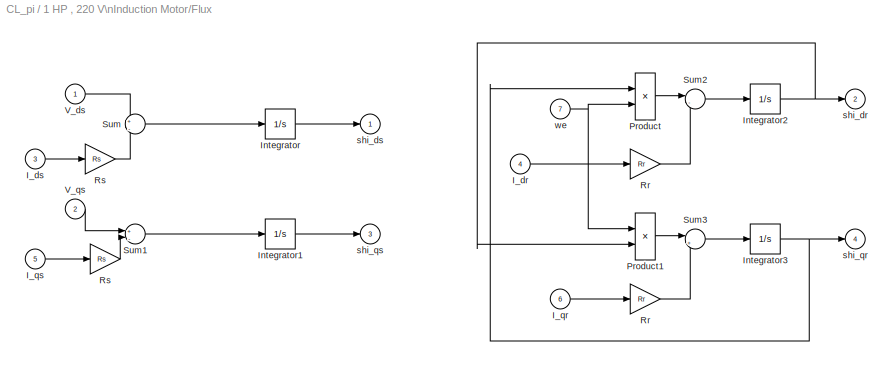
BLOCK [SubSystem] 1 HP , 220 V\nInduction Motor/Flux
  FunctionWithSeparateData = off
  MaskHideContents = off
  MinAlgLoopOccurrences = off
  Opaque = off
  Ports = [7, 4]
  PropExecContextOutsideSubsystem = off
  RTWSystemCode = Auto
  RequestExecContextInheritance = off
BLOCK [Inport] 1 HP , 220 V\nInduction Motor/Flux/I_dr
  IconDisplay = Port number
  Port = 4
BLOCK [Inport] 1 HP , 220 V\nInduction Motor/Flux/I_ds
  IconDisplay = Port number
  Port = 3
BLOCK [Inport] 1 HP , 220 V\nInduction Motor/Flux/I_qr
  IconDisplay = Port number
  Port = 6
BLOCK [Inport] 1 HP , 220 V\nInduction Motor/Flux/I_qs
  IconDisplay = Port number
  Port = 5
BLOCK [Integrator] 1 HP , 220 V\nInduction Motor/Flux/Integrator
  Ports = [1, 1]
BLOCK [Integrator] 1 HP , 220 V\nInduction Motor/Flux/Integrator1
  Ports = [1, 1]
BLOCK [Integrator] 1 HP , 220 V\nInduction Motor/Flux/Integrator2
  Ports = [1, 1]
BLOCK [Integrator] 1 HP , 220 V\nInduction Motor/Flux/Integrator3
  Ports = [1, 1]
BLOCK [Product] 1 HP , 220 V\nInduction Motor/Flux/Product
  InputSameDT = off
  OutDataTypeMode = Inherit via internal rule
  OutDataTypeStr = Inherit: Inherit via internal rule
  Ports = [2, 1]
  RndMeth = Floor
  SaturateOnIntegerOverflow = off
BLOCK [Product] 1 HP , 220 V\nInduction Motor/Flux/Product1
  InputSameDT = off
  OutDataTypeMode = Inherit via internal rule
  OutDataTypeStr = Inherit: Inherit via internal rule
  Ports = [2, 1]
  RndMeth = Floor
  SaturateOnIntegerOverflow = off
BLOCK [Gain] 1 HP , 220 V\nInduction Motor/Flux/Rr
  Gain = Rr
  OutDataTypeMode = Inherit via internal rule
  OutDataTypeStr = Inherit: Inherit via internal rule
  ParamDataTypeStr = Inherit: Inherit via internal rule
  ParameterDataTypeMode = Inherit via internal rule
  SaturateOnIntegerOverflow = off
BLOCK [Gain] 1 HP , 220 V\nInduction Motor/Flux/Rr 
  Gain = Rr
  OutDataTypeMode = Inherit via internal rule
  OutDataTypeStr = Inherit: Inherit via internal rule
  ParamDataTypeStr = Inherit: Inherit via internal rule
  ParameterDataTypeMode = Inherit via internal rule
  SaturateOnIntegerOverflow = off
BLOCK [Gain] 1 HP , 220 V\nInduction Motor/Flux/Rs
  Gain = Rs
  OutDataTypeMode = Inherit via internal rule
  OutDataTypeStr = Inherit: Inherit via internal rule
  ParamDataTypeStr = Inherit: Inherit via internal rule
  ParameterDataTypeMode = Inherit via internal rule
  SaturateOnIntegerOverflow = off
BLOCK [Gain] 1 HP , 220 V\nInduction Motor/Flux/Rs 
  Gain = Rs
  OutDataTypeMode = Inherit via internal rule
  OutDataTypeStr = Inherit: Inherit via internal rule
  ParamDataTypeStr = Inherit: Inherit via internal rule
  ParameterDataTypeMode = Inherit via internal rule
  SaturateOnIntegerOverflow = off
BLOCK [Sum] 1 HP , 220 V\nInduction Motor/Flux/Sum
  IconShape = round
  InputSameDT = off
  Inputs = +|-
  OutDataTypeMode = Inherit via internal rule
  OutDataTypeStr = Inherit: Inherit via internal rule
  Ports = [2, 1]
  SaturateOnIntegerOverflow = off
BLOCK [Sum] 1 HP , 220 V\nInduction Motor/Flux/Sum1
  IconShape = round
  InputSameDT = off
  Inputs = +|-
  OutDataTypeMode = Inherit via internal rule
  OutDataTypeStr = Inherit: Inherit via internal rule
  Ports = [2, 1]
  SaturateOnIntegerOverflow = off
BLOCK [Sum] 1 HP , 220 V\nInduction Motor/Flux/Sum2
  IconShape = round
  InputSameDT = off
  Inputs = |--
  OutDataTypeMode = Inherit via internal rule
  OutDataTypeStr = Inherit: Inherit via internal rule
  Ports = [2, 1]
  SaturateOnIntegerOverflow = off
BLOCK [Sum] 1 HP , 220 V\nInduction Motor/Flux/Sum3
  IconShape = round
  InputSameDT = off
  Inputs = |+-
  OutDataTypeMode = Inherit via internal rule
  OutDataTypeStr = Inherit: Inherit via internal rule
  Ports = [2, 1]
  SaturateOnIntegerOverflow = off
BLOCK [Inport] 1 HP , 220 V\nInduction Motor/Flux/V_ds
  IconDisplay = Port number
BLOCK [Inport] 1 HP , 220 V\nInduction Motor/Flux/V_qs
  IconDisplay = Port number
  Port = 2
BLOCK [Outport] 1 HP , 220 V\nInduction Motor/Flux/shi_dr 
  IconDisplay = Port number
  Port = 2
BLOCK [Outport] 1 HP , 220 V\nInduction Motor/Flux/shi_ds
  IconDisplay = Port number
BLOCK [Outport] 1 HP , 220 V\nInduction Motor/Flux/shi_qr 
  IconDisplay = Port number
  Port = 4
BLOCK [Outport] 1 HP , 220 V\nInduction Motor/Flux/shi_qs
  IconDisplay = Port number
  Port = 3
BLOCK [Inport] 1 HP , 220 V\nInduction Motor/Flux/we
  IconDisplay = Port number
  Port = 7
BLOCK [SubSystem] 1 HP , 220 V\nInduction Motor/Measurements
  FunctionWithSeparateData = off
  MaskHideContents = off
  MinAlgLoopOccurrences = off
  Opaque = off
  Ports = [8, 1]
  PropExecContextOutsideSubsystem = off
  RTWSystemCode = Auto
  RequestExecContextInheritance = off
BLOCK [BusCreator] 1 HP , 220 V\nInduction Motor/Measurements/Bus\nCreator
  DisplayOption = bar
  Inputs = 5
  Ports = [5, 1]
BLOCK [BusCreator] 1 HP , 220 V\nInduction Motor/Measurements/Bus\nCreator1
  DisplayOption = bar
  Inputs = 5
  Ports = [5, 1]
BLOCK [BusCreator] 1 HP , 220 V\nInduction Motor/Measurements/Bus\nCreator2
  DisplayOption = bar
  Inputs = 2
  Ports = [2, 1]
BLOCK [BusCreator] 1 HP , 220 V\nInduction Motor/Measurements/Bus\nCreator3
  DisplayOption = bar
  Inputs = 3
  Ports = [3, 1]
BLOCK [Demux] 1 HP , 220 V\nInduction Motor/Measurements/Demux
  DisplayOption = bar
  Outputs = 3
  Ports = [1, 3]
BLOCK [Demux] 1 HP , 220 V\nInduction Motor/Measurements/Demux1
  DisplayOption = bar
  Outputs = 3
  Ports = [1, 3]
BLOCK [Inport] 1 HP , 220 V\nInduction Motor/Measurements/I_dr
  IconDisplay = Port number
  Port = 4
BLOCK [Inport] 1 HP , 220 V\nInduction Motor/Measurements/I_ds
  IconDisplay = Port number
  Port = 3
BLOCK [Inport] 1 HP , 220 V\nInduction Motor/Measurements/I_qr
  IconDisplay = Port number
  Port = 6
BLOCK [Inport] 1 HP , 220 V\nInduction Motor/Measurements/I_qs
  IconDisplay = Port number
  Port = 5
BLOCK [Inport] 1 HP , 220 V\nInduction Motor/Measurements/I_r
  IconDisplay = Port number
  Port = 2
BLOCK [Inport] 1 HP , 220 V\nInduction Motor/Measurements/I_s
  IconDisplay = Port number
BLOCK [Inport] 1 HP , 220 V\nInduction Motor/Measurements/N
  IconDisplay = Port number
  Port = 8
BLOCK [Inport] 1 HP , 220 V\nInduction Motor/Measurements/Te
  IconDisplay = Port number
  Port = 7
BLOCK [Outport] 1 HP , 220 V\nInduction Motor/Measurements/m
  IconDisplay = Port number
BLOCK [SubSystem] 1 HP , 220 V\nInduction Motor/Mechanical
  FunctionWithSeparateData = off
  MaskHideContents = off
  MinAlgLoopOccurrences = off
  Opaque = off
  Ports = [5, 3]
  PropExecContextOutsideSubsystem = off
  RTWSystemCode = Auto
  RequestExecContextInheritance = off
BLOCK [Gain] 1 HP , 220 V\nInduction Motor/Mechanical/ 
  Gain = P/2
BLOCK [Gain] 1 HP , 220 V\nInduction Motor/Mechanical/  
  Gain = 3*P/4
BLOCK [Gain] 1 HP , 220 V\nInduction Motor/Mechanical/1//J
  Gain = 1/J
BLOCK [Integrator] 1 HP , 220 V\nInduction Motor/Mechanical/Integratorw
  Ports = [1, 1]
BLOCK [Product] 1 HP , 220 V\nInduction Motor/Mechanical/Product1
  InputSameDT = off
  OutDataTypeMode = Inherit via internal rule
  OutDataTypeStr = Inherit: Inherit via internal rule
  Ports = [2, 1]
  RndMeth = Floor
  SaturateOnIntegerOverflow = off
BLOCK [Product] 1 HP , 220 V\nInduction Motor/Mechanical/Product2
  InputSameDT = off
  OutDataTypeMode = Inherit via internal rule
  OutDataTypeStr = Inherit: Inherit via internal rule
  Ports = [2, 1]
  RndMeth = Floor
  SaturateOnIntegerOverflow = off
BLOCK [Sum] 1 HP , 220 V\nInduction Motor/Mechanical/Sum
  IconShape = round
  InputSameDT = off
  Inputs = +|-
  OutDataTypeMode = Inherit via internal rule
  OutDataTypeStr = Inherit: Inherit via internal rule
  Ports = [2, 1]
  SaturateOnIntegerOverflow = off
BLOCK [Sum] 1 HP , 220 V\nInduction Motor/Mechanical/Sum5
  IconShape = round
  Inputs = +-
  Ports = [2, 1]
BLOCK [Outport] 1 HP , 220 V\nInduction Motor/Mechanical/Te
  IconDisplay = Port number
BLOCK [Inport] 1 HP , 220 V\nInduction Motor/Mechanical/i_ds
  IconDisplay = Port number
  Port = 3
BLOCK [Inport] 1 HP , 220 V\nInduction Motor/Mechanical/i_qs
  IconDisplay = Port number
  Port = 4
BLOCK [Outport] 1 HP , 220 V\nInduction Motor/Mechanical/omegaR
  IconDisplay = Port number
  Port = 2
BLOCK [Inport] 1 HP , 220 V\nInduction Motor/Mechanical/shi_ds
  IconDisplay = Port number
BLOCK [Inport] 1 HP , 220 V\nInduction Motor/Mechanical/shi_qs
  IconDisplay = Port number
  Port = 2
BLOCK [Inport] 1 HP , 220 V\nInduction Motor/Mechanical/tau
  IconDisplay = Port number
  Port = 5
BLOCK [Outport] 1 HP , 220 V\nInduction Motor/Mechanical/we
  IconDisplay = Port number
  Port = 3
BLOCK [Mux] 1 HP , 220 V\nInduction Motor/Mux
  DisplayOption = bar
  Inputs = 3
  Ports = [3, 1]
BLOCK [Mux] 1 HP , 220 V\nInduction Motor/Mux1
  DisplayOption = bar
  Inputs = 3
  Ports = [3, 1]
BLOCK [Inport] 1 HP , 220 V\nInduction Motor/V_a
  IconDisplay = Port number
  Port = 2
BLOCK [Inport] 1 HP , 220 V\nInduction Motor/V_b
  IconDisplay = Port number
  Port = 3
BLOCK [Inport] 1 HP , 220 V\nInduction Motor/V_c
  IconDisplay = Port number
  Port = 4
BLOCK [SubSystem] 1 HP , 220 V\nInduction Motor/abc to dq
  FunctionWithSeparateData = off
  MaskHideContents = off
  MinAlgLoopOccurrences = off
  Opaque = off
  Ports = [3, 2]
  PropExecContextOutsideSubsystem = off
  RTWSystemCode = Auto
  RequestExecContextInheritance = off
BLOCK [Terminator] 1 HP , 220 V\nInduction Motor/abc to dq/            
BLOCK [Demux] 1 HP , 220 V\nInduction Motor/abc to dq/Demux
  Outputs = 3
  Ports = [1, 3]
BLOCK [Mux] 1 HP , 220 V\nInduction Motor/abc to dq/Mux
  DisplayOption = bar
  Inputs = 3
  Ports = [3, 1]
BLOCK [Outport] 1 HP , 220 V\nInduction Motor/abc to dq/V_ds
  IconDisplay = Port number
BLOCK [Outport] 1 HP , 220 V\nInduction Motor/abc to dq/V_qs
  IconDisplay = Port number
  Port = 2
BLOCK [Inport] 1 HP , 220 V\nInduction Motor/abc to dq/Va
  IconDisplay = Port number
BLOCK [Inport] 1 HP , 220 V\nInduction Motor/abc to dq/Vb
  IconDisplay = Port number
  Port = 2
BLOCK [Inport] 1 HP , 220 V\nInduction Motor/abc to dq/Vc
  IconDisplay = Port number
  Port = 3
BLOCK [Gain] 1 HP , 220 V\nInduction Motor/abc to dq/abc2dq
  Gain = [2/3 -1/3 -1/3; 0 sqrt(3)/3 -sqrt(3)/3; 1/3 1/3 1/3]
  Multiplication = Matrix(K*u)
BLOCK [SubSystem] 1 HP , 220 V\nInduction Motor/d_block
  FunctionWithSeparateData = off
  MaskHideContents = off
  MinAlgLoopOccurrences = off
  Opaque = off
  Ports = [2, 2]
  PropExecContextOutsideSubsystem = off
  RTWSystemCode = Auto
  RequestExecContextInheritance = off
BLOCK [Gain] 1 HP , 220 V\nInduction Motor/d_block/1//(Lr-((Lm*Lm)//Ls))
  Gain = 1/(Lr-((Lm*Lm)/Ls))
BLOCK [Gain] 1 HP , 220 V\nInduction Motor/d_block/1//(Ls-((Lm*Lm)//Lr))
  Gain = 1/(Ls-((Lm*Lm)/Lr))
BLOCK [Gain] 1 HP , 220 V\nInduction Motor/d_block/Lm//Lr
  Gain = Lm/Lr
  OutDataTypeMode = Inherit via internal rule
  OutDataTypeStr = Inherit: Inherit via internal rule
  ParamDataTypeStr = Inherit: Inherit via internal rule
  ParameterDataTypeMode = Inherit via internal rule
  SaturateOnIntegerOverflow = off
BLOCK [Gain] 1 HP , 220 V\nInduction Motor/d_block/Lm//Ls
  Gain = Lm/Ls
  OutDataTypeMode = Inherit via internal rule
  OutDataTypeStr = Inherit: Inherit via internal rule
  ParamDataTypeStr = Inherit: Inherit via internal rule
  ParameterDataTypeMode = Inherit via internal rule
  SaturateOnIntegerOverflow = off
BLOCK [Sum] 1 HP , 220 V\nInduction Motor/d_block/Sum
  IconShape = round
  InputSameDT = off
  Inputs = |+-
  OutDataTypeMode = Inherit via internal rule
  OutDataTypeStr = Inherit: Inherit via internal rule
  Ports = [2, 1]
  SaturateOnIntegerOverflow = off
BLOCK [Sum] 1 HP , 220 V\nInduction Motor/d_block/Sum1
  IconShape = round
  InputSameDT = off
  Inputs = -+|
  OutDataTypeMode = Inherit via internal rule
  OutDataTypeStr = Inherit: Inherit via internal rule
  Ports = [2, 1]
  SaturateOnIntegerOverflow = off
BLOCK [Outport] 1 HP , 220 V\nInduction Motor/d_block/i_dr
  IconDisplay = Port number
  Port = 2
BLOCK [Outport] 1 HP , 220 V\nInduction Motor/d_block/i_ds
  IconDisplay = Port number
BLOCK [Inport] 1 HP , 220 V\nInduction Motor/d_block/shi_dr
  IconDisplay = Port number
  Port = 2
BLOCK [Inport] 1 HP , 220 V\nInduction Motor/d_block/shi_ds
  IconDisplay = Port number
BLOCK [SubSystem] 1 HP , 220 V\nInduction Motor/dq to abc
  FunctionWithSeparateData = off
  MaskHideContents = off
  MinAlgLoopOccurrences = off
  Opaque = off
  Ports = [2, 3]
  PropExecContextOutsideSubsystem = off
  RTWSystemCode = Auto
  RequestExecContextInheritance = off
BLOCK [SubSystem] 1 HP , 220 V\nInduction Motor/dq to abc 
  FunctionWithSeparateData = off
  MaskHideContents = off
  MinAlgLoopOccurrences = off
  Opaque = off
  Ports = [2, 3]
  PropExecContextOutsideSubsystem = off
  RTWSystemCode = Auto
  RequestExecContextInheritance = off
BLOCK [Demux] 1 HP , 220 V\nInduction Motor/dq to abc /Demux
  Outputs = 3
  Ports = [1, 3]
BLOCK [Gain] 1 HP , 220 V\nInduction Motor/dq to abc /Gain
  Gain = 2/3
BLOCK [Inport] 1 HP , 220 V\nInduction Motor/dq to abc /I_d
  IconDisplay = Port number
BLOCK [Inport] 1 HP , 220 V\nInduction Motor/dq to abc /I_q
  IconDisplay = Port number
  Port = 2
BLOCK [Gain] 1 HP , 220 V\nInduction Motor/dq to abc /Matrix\nGain
  Gain = [1 0;-0.5 -sqrt(3)/2;-0.5 sqrt(3)/2]
  Multiplication = Matrix(K*u)
BLOCK [Mux] 1 HP , 220 V\nInduction Motor/dq to abc /Mux
  DisplayOption = bar
  Inputs = 2
  Ports = [2, 1]
BLOCK [Outport] 1 HP , 220 V\nInduction Motor/dq to abc /i_ra
  IconDisplay = Port number
BLOCK [Outport] 1 HP , 220 V\nInduction Motor/dq to abc /i_rb
  IconDisplay = Port number
  Port = 2
BLOCK [Outport] 1 HP , 220 V\nInduction Motor/dq to abc /i_rc
  IconDisplay = Port number
  Port = 3
BLOCK [Demux] 1 HP , 220 V\nInduction Motor/dq to abc/Demux
  Outputs = 3
  Ports = [1, 3]
BLOCK [Gain] 1 HP , 220 V\nInduction Motor/dq to abc/Gain
  Gain = 2/3
BLOCK [Inport] 1 HP , 220 V\nInduction Motor/dq to abc/I_d
  IconDisplay = Port number
BLOCK [Inport] 1 HP , 220 V\nInduction Motor/dq to abc/I_q
  IconDisplay = Port number
  Port = 2
BLOCK [Gain] 1 HP , 220 V\nInduction Motor/dq to abc/Matrix\nGain
  Gain = [1 0;-0.5 -sqrt(3)/2;-0.5 sqrt(3)/2]
  Multiplication = Matrix(K*u)
BLOCK [Mux] 1 HP , 220 V\nInduction Motor/dq to abc/Mux
  DisplayOption = bar
  Inputs = 2
  Ports = [2, 1]
BLOCK [Outport] 1 HP , 220 V\nInduction Motor/dq to abc/i_sa
  IconDisplay = Port number
BLOCK [Outport] 1 HP , 220 V\nInduction Motor/dq to abc/i_sb
  IconDisplay = Port number
  Port = 2
BLOCK [Outport] 1 HP , 220 V\nInduction Motor/dq to abc/i_sc
  IconDisplay = Port number
  Port = 3
BLOCK [Outport] 1 HP , 220 V\nInduction Motor/m
  IconDisplay = Port number
BLOCK [SubSystem] 1 HP , 220 V\nInduction Motor/q_block
  FunctionWithSeparateData = off
  MaskHideContents = off
  MinAlgLoopOccurrences = off
  Opaque = off
  Ports = [2, 2]
  PropExecContextOutsideSubsystem = off
  RTWSystemCode = Auto
  RequestExecContextInheritance = off
BLOCK [Gain] 1 HP , 220 V\nInduction Motor/q_block/1//(Lr-((Lm*Lm)//Ls))
  Gain = 1/(Lr-((Lm*Lm)/Ls))
BLOCK [Gain] 1 HP , 220 V\nInduction Motor/q_block/1//(Ls-((Lm*Lm)//Lr))
  Gain = 1/(Ls-((Lm*Lm)/Lr))
BLOCK [Gain] 1 HP , 220 V\nInduction Motor/q_block/Lm//Lr
  Gain = Lm/Lr
  OutDataTypeMode = Inherit via internal rule
  OutDataTypeStr = Inherit: Inherit via internal rule
  ParamDataTypeStr = Inherit: Inherit via internal rule
  ParameterDataTypeMode = Inherit via internal rule
  SaturateOnIntegerOverflow = off
BLOCK [Gain] 1 HP , 220 V\nInduction Motor/q_block/Lm//Ls
  Gain = Lm/Ls
  OutDataTypeMode = Inherit via internal rule
  OutDataTypeStr = Inherit: Inherit via internal rule
  ParamDataTypeStr = Inherit: Inherit via internal rule
  ParameterDataTypeMode = Inherit via internal rule
  SaturateOnIntegerOverflow = off
BLOCK [Sum] 1 HP , 220 V\nInduction Motor/q_block/Sum
  IconShape = round
  InputSameDT = off
  Inputs = |+-
  OutDataTypeMode = Inherit via internal rule
  OutDataTypeStr = Inherit: Inherit via internal rule
  Ports = [2, 1]
  SaturateOnIntegerOverflow = off
BLOCK [Sum] 1 HP , 220 V\nInduction Motor/q_block/Sum1
  IconShape = round
  InputSameDT = off
  Inputs = -+|
  OutDataTypeMode = Inherit via internal rule
  OutDataTypeStr = Inherit: Inherit via internal rule
  Ports = [2, 1]
  SaturateOnIntegerOverflow = off
BLOCK [Outport] 1 HP , 220 V\nInduction Motor/q_block/i_qr
  IconDisplay = Port number
  Port = 2
BLOCK [Outport] 1 HP , 220 V\nInduction Motor/q_block/i_qs
  IconDisplay = Port number
BLOCK [Inport] 1 HP , 220 V\nInduction Motor/q_block/shi_qr
  IconDisplay = Port number
  Port = 2
BLOCK [Inport] 1 HP , 220 V\nInduction Motor/q_block/shi_qs
  IconDisplay = Port number
BLOCK [Gain] 1 HP , 220 V\nInduction Motor/rad2rpm
  Gain = 30/pi
  OutDataTypeMode = Inherit via internal rule
  OutDataTypeStr = Inherit: Inherit via internal rule
  ParamDataTypeStr = Inherit: Inherit via internal rule
  ParameterDataTypeMode = Inherit via internal rule
  SaturateOnIntegerOverflow = off
BLOCK [Inport] 1 HP , 220 V\nInduction Motor/tau
  IconDisplay = Port number
BLOCK [SubSystem] Data Acquision
  FunctionWithSeparateData = off
  MaskHideContents = off
  MinAlgLoopOccurrences = off
  Opaque = off
  Ports = [1, 3]
  PropExecContextOutsideSubsystem = off
  RTWSystemCode = Auto
  RequestExecContextInheritance = off
BLOCK [Reference] Data Acquision/2nd-Order\nFilter  REF=powerlib_extras/Control \nBlocks/2nd-Order\nFilter
  DialogController = POWERSYS.PowerSysDialog
  FilterType = Lowpass
  Fo = 120
  FunctionWithSeparateData = off
  Initialize = off
  PlotResponse = off
  Ports = [1, 1]
  RTWMemSecDataConstants = Inherit from model
  RTWMemSecDataInternal = Inherit from model
  RTWMemSecDataParameters = Inherit from model
  RTWMemSecFuncExecute = Inherit from model
  RTWMemSecFuncInitTerm = Inherit from model
  ShowPortLabels = FromPortIcon
  SourceBlock = powerlib_extras/Control \nBlocks/2nd-Order\nFilter
  SourceType = 2nd-Order Filter
  SystemSampleTime = -1
  Vac_Init = [1 45 60]
  Vdc_Init = -0.5
  Zeta = 0.707
  param1 = [1 500 1]
BLOCK [BusSelector] Data Acquision/Bus\nSelector
  OutputSignals = Mechanical.Rotor Speed in (rpm),Mechanical.Electromagnetic Torque (N*m),Stator Measurement.Stator Current i_sa (A)
  Ports = [1, 3]
BLOCK [Clock] Data Acquision/Clock
  Decimation = 10
BLOCK [From] Data Acquision/From
  GotoTag = speed
  TagVisibility = global
BLOCK [Mux] Data Acquision/Mux
  DisplayOption = bar
  Inputs = 2
  Ports = [2, 1]
BLOCK [Outport] Data Acquision/Te(Nm)
  IconDisplay = Port number
  Port = 2
BLOCK [ToWorkspace] Data Acquision/To Workspace
  FixptAsFi = on
  MaxDataPoints = inf
  SampleTime = ts
  SaveFormat = Array
  VariableName = t
BLOCK [Outport] Data Acquision/is_a
  IconDisplay = Port number
BLOCK [Inport] Data Acquision/m
  IconDisplay = Port number
BLOCK [ToWorkspace] Data Acquision/te
  MaxDataPoints = inf
  SampleTime = ts
  SaveFormat = Array
  VariableName = Te_pi
BLOCK [ToWorkspace] Data Acquision/te1
  MaxDataPoints = inf
  SampleTime = ts
  SaveFormat = Array
  VariableName = ref_pi
BLOCK [FrameConversion] Data Acquision/tp2d2ed547_8755_4176_b2df_b47a3ed91f8f
  OutFrame = Sample-based
  Ports = [1, 1]
BLOCK [Outport] Data Acquision/wm
  IconDisplay = Port number
  Port = 3
BLOCK [ToWorkspace] Data Acquision/wr
  MaxDataPoints = inf
  SampleTime = ts
  SaveFormat = Array
  VariableName = N_pi
BLOCK [Goto] Goto
  GotoTag = speed
  TagVisibility = global
BLOCK [Scope] Ir_a
  DataFormat = StructureWithTime
  Floating = off
  LimitDataPoints = off
  NumInputPorts = 1
  Ports = [1]
  SampleTime = ts
  TimeRange = 2
  YMax = 3
  YMin = -3
  ZoomMode = xonly
BLOCK [SubSystem] PI Control
  FunctionWithSeparateData = off
  MaskDisplay = fprintf('PI\\Control')
  MaskHideContents = off
  MaskIconFrame = on
  MaskIconOpaque = off
  MaskIconRotate = none
  MaskIconUnits = autoscale
  MaskPortRotate = default
  MinAlgLoopOccurrences = off
  Opaque = off
  Ports = [2, 1]
  PropExecContextOutsideSubsystem = off
  RTWSystemCode = Auto
  RequestExecContextInheritance = off
BLOCK [Abs] PI Control/Abs
BLOCK [Abs] PI Control/Abs1
BLOCK [Abs] PI Control/Abs2
  SaturateOnIntegerOverflow = off
BLOCK [Reference] PI Control/Compare\nTo Constant  REF=simulink/Logic and Bit\nOperations/Compare\nTo Constant
  FunctionWithSeparateData = off
  LogicOutDataTypeMode = uint8
  Ports = [1, 1]
  RTWMemSecDataConstants = Inherit from model
  RTWMemSecDataInternal = Inherit from model
  RTWMemSecDataParameters = Inherit from model
  RTWMemSecFuncExecute = Inherit from model
  RTWMemSecFuncInitTerm = Inherit from model
  ShowPortLabels = FromPortIcon
  SourceBlock = simulink/Logic and Bit\nOperations/Compare\nTo Constant
  SourceType = Compare To Constant
  SystemSampleTime = -1
  ZeroCross = on
  const = 0.1
  relop = <=
BLOCK [Constant] PI Control/Constant
  Value = 0
BLOCK [Product] PI Control/Divide
  InputSameDT = off
  Inputs = /*
  OutDataTypeMode = Inherit via internal rule
  OutDataTypeStr = Inherit: Inherit via internal rule
  Ports = [2, 1]
  RndMeth = Floor
  SaturateOnIntegerOverflow = off
BLOCK [Outport] PI Control/Freq*
  IconDisplay = Port number
BLOCK [Integrator] PI Control/Integrator\nLimited
  LimitOutput = on
  LowerSaturationLimit = -30
  Ports = [1, 1]
  UpperSaturationLimit = 30
BLOCK [Inport] PI Control/N
  IconDisplay = Port number
  Port = 2
BLOCK [Inport] PI Control/N*
  IconDisplay = Port number
BLOCK [Gain] PI Control/Proportional gain
  Gain = 0.3
BLOCK [RateTransition] PI Control/Rate Transition3
  OutPortSampleTimeOpt = Inherit
BLOCK [Saturate] PI Control/Saturation
  LowerLimit = 2
  UpperLimit = inf
BLOCK [Saturate] PI Control/Saturation2
  LowerLimit = 0.02
  UpperLimit = 120
BLOCK [Sum] PI Control/Sum1
  IconShape = round
  Inputs = |+-
  Ports = [2, 1]
BLOCK [Sum] PI Control/Sum2
  Ports = [2, 1]
BLOCK [Sum] PI Control/Sum3
  IconShape = round
  Inputs = |++
  Ports = [2, 1]
BLOCK [Switch] PI Control/Switch
  InputSameDT = off
  SaturateOnIntegerOverflow = off
  Threshold = 0.5
BLOCK [Saturate] PI Control/ctrl_sat
  LowerLimit = -30
  UpperLimit = 30
BLOCK [Gain] PI Control/rpm2hz
  Gain = 4/120
BLOCK [Gain] PI Control/rpm2hz  
  Gain = 4/120
BLOCK [Selector] Selector
  IndexOptions = Index vector (dialog)
  Indices = [1]
  InputPortWidth = 2
  OutputSizes = 1
  Ports = [1, 1]
BLOCK [Step] Speed_ref
  After = 1440
  Before = 1440
  SampleTime = 0
  Time = 2
BLOCK [SubSystem] VSI
  FunctionWithSeparateData = off
  MaskDisplay = fprintf('Vdc = 220 V ')
  MaskHideContents = off
  MaskIconFrame = on
  MaskIconOpaque = off
  MaskIconRotate = none
  MaskIconUnits = autoscale
  MaskInitialization = Vdc=220;
  MaskPortRotate = default
  MinAlgLoopOccurrences = off
  Opaque = off
  Ports = [1, 3]
  PropExecContextOutsideSubsystem = off
  RTWSystemCode = Auto
  RequestExecContextInheritance = off
BLOCK [Fcn] VSI/Fcn
  Expr = (2*sqrt(2/3)*Vdc/3)*(2*u(1)-u(2)-u(3))
BLOCK [Fcn] VSI/Fcn1
  Expr = (2*sqrt(2/3)*Vdc/3)*(2*u(2)-u(3)-u(1))
BLOCK [Fcn] VSI/Fcn2
  Expr = (2*sqrt(2/3)*Vdc/3)*(2*u(3)-u(2)-u(1))
BLOCK [Inport] VSI/Freq
  IconDisplay = Port number
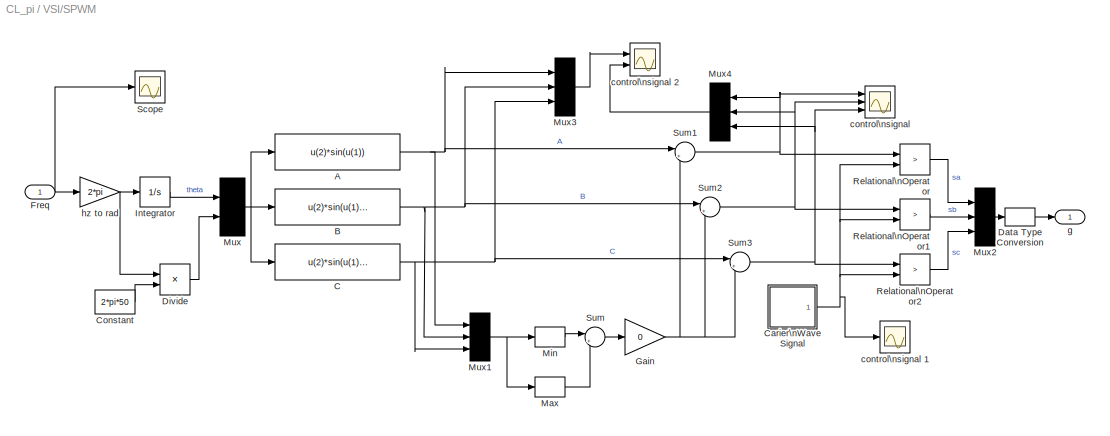
BLOCK [SubSystem] VSI/SPWM
  FunctionWithSeparateData = off
  MaskHideContents = off
  MinAlgLoopOccurrences = off
  Opaque = off
  Ports = [1, 1]
  PropExecContextOutsideSubsystem = off
  RTWSystemCode = Auto
  RequestExecContextInheritance = off
BLOCK [Fcn] VSI/SPWM/A
  Expr = u(2)*sin(u(1))
BLOCK [Fcn] VSI/SPWM/B
  Expr = u(2)*sin(u(1)-2*pi/3)
BLOCK [Fcn] VSI/SPWM/C
  Expr = u(2)*sin(u(1)+2*pi/3)
BLOCK [SubSystem] VSI/SPWM/Carier\nWave Signal
  FunctionWithSeparateData = off
  MaskCallbackString = |
  MaskDisplay = fprintf('Carrier\\nWave')
  MaskEnableString = on,on
  MaskHideContents = off
  MaskIconFrame = on
  MaskIconOpaque = on
  MaskIconRotate = none
  MaskIconUnits = autoscale
  MaskPortRotate = default
  MaskPromptString = Amplitude |Carrier Wave Frequency
  MaskStyleString = edit,edit
  MaskTabNameString = ,
  MaskToolTipString = on,on
  MaskTunableValueString = on,on
  MaskType = Carrier Wave Generator:
  MaskValueString = 1|500
  MaskVarAliasString = ,
  MaskVariables = A=@1;fc=@2;
  MaskVisibilityString = on,on
  MinAlgLoopOccurrences = off
  Opaque = off
  Ports = [0, 1]
  PropExecContextOutsideSubsystem = off
  RTWSystemCode = Auto
  RequestExecContextInheritance = off
BLOCK [Reference] VSI/SPWM/Carier\nWave Signal/Carier\nWave  REF=simulink/Sources/Repeating\nSequence
  FunctionWithSeparateData = off
  Ports = [0, 1]
  RTWMemSecDataConstants = Inherit from model
  RTWMemSecDataInternal = Inherit from model
  RTWMemSecDataParameters = Inherit from model
  RTWMemSecFuncExecute = Inherit from model
  RTWMemSecFuncInitTerm = Inherit from model
  ShowPortLabels = FromPortIcon
  SourceBlock = simulink/Sources/Repeating\nSequence
  SourceType = Repeating table
  SystemSampleTime = -1
  rep_seq_t = [0 0.25 0.5 0.75 1]./fc
  rep_seq_y = [0 1 0 -1 0].*A
BLOCK [Outport] VSI/SPWM/Carier\nWave Signal/Carier\nWave 
  IconDisplay = Port number
BLOCK [Constant] VSI/SPWM/Constant
  Value = 2*pi*50
BLOCK [DataTypeConversion] VSI/SPWM/Data Type Conversion
  OutDataType = fixdt(1, 16)
  OutScaling = 2^0
  RndMeth = Floor
  SaturateOnIntegerOverflow = off
BLOCK [Product] VSI/SPWM/Divide
  InputSameDT = off
  Inputs = */
  OutDataTypeMode = Inherit via internal rule
  OutDataTypeStr = Inherit: Inherit via internal rule
  Ports = [2, 1]
  RndMeth = Floor
  SaturateOnIntegerOverflow = off
BLOCK [Inport] VSI/SPWM/Freq
  IconDisplay = Port number
BLOCK [Gain] VSI/SPWM/Gain
  Gain = 0
  OutDataTypeMode = Inherit via internal rule
  OutDataTypeStr = Inherit: Inherit via internal rule
  ParamDataTypeStr = Inherit: Inherit via internal rule
  ParameterDataTypeMode = Inherit via internal rule
  SaturateOnIntegerOverflow = off
BLOCK [Integrator] VSI/SPWM/Integrator
  Ports = [1, 1]
BLOCK [MinMax] VSI/SPWM/Max
  Function = max
  InputSameDT = off
  Ports = [1, 1]
  SaturateOnIntegerOverflow = off
BLOCK [MinMax] VSI/SPWM/Min
  Function = min
  InputSameDT = off
  Ports = [1, 1]
  SaturateOnIntegerOverflow = off
BLOCK [Mux] VSI/SPWM/Mux
  DisplayOption = signals
  Inputs = 2
  Ports = [2, 1]
BLOCK [Mux] VSI/SPWM/Mux1
  DisplayOption = signals
  Inputs = 3
  Ports = [3, 1]
BLOCK [Mux] VSI/SPWM/Mux2
  DisplayOption = signals
  Inputs = 3
  Ports = [3, 1]
BLOCK [Mux] VSI/SPWM/Mux3
  DisplayOption = signals
  Inputs = 3
  Ports = [3, 1]
BLOCK [Mux] VSI/SPWM/Mux4
  DisplayOption = signals
  Inputs = 3
  Ports = [3, 1]
BLOCK [RelationalOperator] VSI/SPWM/Relational\nOperator
  InputSameDT = off
  LogicOutDataTypeMode = boolean
  Operator = >
  OutDataTypeStr = boolean
BLOCK [RelationalOperator] VSI/SPWM/Relational\nOperator1
  InputSameDT = off
  LogicOutDataTypeMode = boolean
  Operator = >
  OutDataTypeStr = boolean
BLOCK [RelationalOperator] VSI/SPWM/Relational\nOperator2
  InputSameDT = off
  LogicOutDataTypeMode = boolean
  Operator = >
  OutDataTypeStr = boolean
BLOCK [Scope] VSI/SPWM/Scope
  DataFormat = StructureWithTime
  Floating = off
  LimitDataPoints = off
  NumInputPorts = 1
  Ports = [1]
  SampleTime = 0
  SaveName = ScopeData2
  TimeRange = 3
  YMax = 50
  YMin = 30
  ZoomMode = yonly
BLOCK [Sum] VSI/SPWM/Sum
  IconShape = round
  InputSameDT = off
  Inputs = |++
  OutDataTypeMode = Inherit via internal rule
  OutDataTypeStr = Inherit: Inherit via internal rule
  Ports = [2, 1]
  SaturateOnIntegerOverflow = off
BLOCK [Sum] VSI/SPWM/Sum1
  IconShape = round
  InputSameDT = off
  Inputs = |++
  OutDataTypeMode = Inherit via internal rule
  OutDataTypeStr = Inherit: Inherit via internal rule
  Ports = [2, 1]
  SaturateOnIntegerOverflow = off
BLOCK [Sum] VSI/SPWM/Sum2
  IconShape = round
  InputSameDT = off
  Inputs = |++
  OutDataTypeMode = Inherit via internal rule
  OutDataTypeStr = Inherit: Inherit via internal rule
  Ports = [2, 1]
  SaturateOnIntegerOverflow = off
BLOCK [Sum] VSI/SPWM/Sum3
  IconShape = round
  InputSameDT = off
  Inputs = |++
  OutDataTypeMode = Inherit via internal rule
  OutDataTypeStr = Inherit: Inherit via internal rule
  Ports = [2, 1]
  SaturateOnIntegerOverflow = off
BLOCK [Scope] VSI/SPWM/control\nsignal 
  DataFormat = StructureWithTime
  Floating = off
  LimitDataPoints = off
  NumInputPorts = 3
  Ports = [3]
  SampleTime = 0
  TimeRange = 0.5
  YMax = 1.5~1.5~1.5
  YMin = -1.5~-1.5~-1.5
BLOCK [Scope] VSI/SPWM/control\nsignal 1
  DataFormat = StructureWithTime
  Floating = off
  LimitDataPoints = off
  NumInputPorts = 1
  Ports = [1]
  SampleTime = Ts
  SaveName = ScopeData1
  TimeRange = 0.0117840461100045
  YMax = 1
  YMin = -1
  ZoomMode = xonly
BLOCK [Scope] VSI/SPWM/control\nsignal 2
  DataFormat = StructureWithTime
  Floating = off
  LimitDataPoints = off
  NumInputPorts = 2
  Ports = [2]
  SampleTime = 0
  SaveName = ScopeData6
  TimeRange = 4
  YMax = 1.5~1.5
  YMin = -1.5~-1.5
  ZoomMode = xonly
BLOCK [Outport] VSI/SPWM/g
  IconDisplay = Port number
BLOCK [Gain] VSI/SPWM/hz to rad
  Gain = 2*pi
  OutDataTypeMode = Inherit via internal rule
  OutDataTypeStr = Inherit: Inherit via internal rule
  ParamDataTypeStr = Inherit: Inherit via internal rule
  ParameterDataTypeMode = Inherit via internal rule
  SaturateOnIntegerOverflow = off
BLOCK [Outport] VSI/Va
  IconDisplay = Port number
BLOCK [Outport] VSI/Vb
  IconDisplay = Port number
  Port = 2
BLOCK [Outport] VSI/Vc
  IconDisplay = Port number
  Port = 3
BLOCK [Scope] VSI/Vs
  DataFormat = StructureWithTime
  Floating = off
  LimitDataPoints = off
  NumInputPorts = 3
  Ports = [3]
  SampleInput = on
  SampleTime = ts
  SaveName = voltage
  SaveToWorkspace = on
  TimeRange = 0.1701392689898436
  YMax = 500~500~500
  YMin = -500~-500~-500
  ZoomMode = xonly
BLOCK [Display] speed rad//sec)1
  Decimation = 1
  Lockdown = off
  Ports = [1]
BLOCK [Step] torque
  SampleTime = 0
  Time = 2
BLOCK [Scope] wm,te
  DataFormat = StructureWithTime
  Floating = off
  LimitDataPoints = off
  NumInputPorts = 2
  Ports = [2]
  SampleInput = on
  SampleTime = ts
  SaveName = ScopeData1
  TimeRange = 4
  YMax = 4~1500
  YMin = -3~0
ANNOTATION (root): By \nSrikanth dakoju\nemail: <email>
ANNOTATION (root): Closed Loop Speed Control of Induction Motor (dynamic model) by PI Control
ANNOTATION (root): ctrl+U to look under mask
LINE 1 HP , 220 V\nInduction Motor/Flux/I_dr:1 -> 1 HP , 220 V\nInduction Motor/Flux/Rr:1
LINE 1 HP , 220 V\nInduction Motor/Flux/I_ds:1 -> 1 HP , 220 V\nInduction Motor/Flux/Rs:1
LINE 1 HP , 220 V\nInduction Motor/Flux/I_qr:1 -> 1 HP , 220 V\nInduction Motor/Flux/Rr :1
LINE 1 HP , 220 V\nInduction Motor/Flux/I_qs:1 -> 1 HP , 220 V\nInduction Motor/Flux/Rs :1
LINE 1 HP , 220 V\nInduction Motor/Flux/Integrator1:1 -> 1 HP , 220 V\nInduction Motor/Flux/shi_qs:1
NET 1 HP , 220 V\nInduction Motor/Flux/Integrator2:1 -> 1 HP , 220 V\nInduction Motor/Flux/Product1:2, 1 HP , 220 V\nInduction Motor/Flux/shi_dr :1
NET 1 HP , 220 V\nInduction Motor/Flux/Integrator3:1 -> 1 HP , 220 V\nInduction Motor/Flux/Product:1, 1 HP , 220 V\nInduction Motor/Flux/shi_qr :1
LINE 1 HP , 220 V\nInduction Motor/Flux/Integrator:1 -> 1 HP , 220 V\nInduction Motor/Flux/shi_ds:1
LINE 1 HP , 220 V\nInduction Motor/Flux/Product1:1 -> 1 HP , 220 V\nInduction Motor/Flux/Sum3:1
LINE 1 HP , 220 V\nInduction Motor/Flux/Product:1 -> 1 HP , 220 V\nInduction Motor/Flux/Sum2:1
LINE 1 HP , 220 V\nInduction Motor/Flux/Rr :1 -> 1 HP , 220 V\nInduction Motor/Flux/Sum3:2
LINE 1 HP , 220 V\nInduction Motor/Flux/Rr:1 -> 1 HP , 220 V\nInduction Motor/Flux/Sum2:2
LINE 1 HP , 220 V\nInduction Motor/Flux/Rs :1 -> 1 HP , 220 V\nInduction Motor/Flux/Sum1:2
LINE 1 HP , 220 V\nInduction Motor/Flux/Rs:1 -> 1 HP , 220 V\nInduction Motor/Flux/Sum:2
LINE 1 HP , 220 V\nInduction Motor/Flux/Sum1:1 -> 1 HP , 220 V\nInduction Motor/Flux/Integrator1:1
LINE 1 HP , 220 V\nInduction Motor/Flux/Sum2:1 -> 1 HP , 220 V\nInduction Motor/Flux/Integrator2:1
LINE 1 HP , 220 V\nInduction Motor/Flux/Sum3:1 -> 1 HP , 220 V\nInduction Motor/Flux/Integrator3:1
LINE 1 HP , 220 V\nInduction Motor/Flux/Sum:1 -> 1 HP , 220 V\nInduction Motor/Flux/Integrator:1
LINE 1 HP , 220 V\nInduction Motor/Flux/V_ds:1 -> 1 HP , 220 V\nInduction Motor/Flux/Sum:1
LINE 1 HP , 220 V\nInduction Motor/Flux/V_qs:1 -> 1 HP , 220 V\nInduction Motor/Flux/Sum1:1
NET 1 HP , 220 V\nInduction Motor/Flux/we:1 -> 1 HP , 220 V\nInduction Motor/Flux/Product1:1, 1 HP , 220 V\nInduction Motor/Flux/Product:2
NET 1 HP , 220 V\nInduction Motor/Flux:1 -> 1 HP , 220 V\nInduction Motor/Mechanical:1, 1 HP , 220 V\nInduction Motor/d_block:1
LINE 1 HP , 220 V\nInduction Motor/Flux:2 -> 1 HP , 220 V\nInduction Motor/d_block:2
NET 1 HP , 220 V\nInduction Motor/Flux:3 -> 1 HP , 220 V\nInduction Motor/Mechanical:2, 1 HP , 220 V\nInduction Motor/q_block:1
LINE 1 HP , 220 V\nInduction Motor/Flux:4 -> 1 HP , 220 V\nInduction Motor/q_block:2
LINE 1 HP , 220 V\nInduction Motor/Measurements/Bus\nCreator1:1 -> 1 HP , 220 V\nInduction Motor/Measurements/Bus\nCreator3:2
LINE 1 HP , 220 V\nInduction Motor/Measurements/Bus\nCreator2:1 -> 1 HP , 220 V\nInduction Motor/Measurements/Bus\nCreator3:3
LINE 1 HP , 220 V\nInduction Motor/Measurements/Bus\nCreator3:1 -> 1 HP , 220 V\nInduction Motor/Measurements/m:1
LINE 1 HP , 220 V\nInduction Motor/Measurements/Bus\nCreator:1 -> 1 HP , 220 V\nInduction Motor/Measurements/Bus\nCreator3:1
LINE 1 HP , 220 V\nInduction Motor/Measurements/Demux1:1 -> 1 HP , 220 V\nInduction Motor/Measurements/Bus\nCreator1:1
LINE 1 HP , 220 V\nInduction Motor/Measurements/Demux1:2 -> 1 HP , 220 V\nInduction Motor/Measurements/Bus\nCreator1:2
LINE 1 HP , 220 V\nInduction Motor/Measurements/Demux1:3 -> 1 HP , 220 V\nInduction Motor/Measurements/Bus\nCreator1:3
LINE 1 HP , 220 V\nInduction Motor/Measurements/Demux:1 -> 1 HP , 220 V\nInduction Motor/Measurements/Bus\nCreator:1
LINE 1 HP , 220 V\nInduction Motor/Measurements/Demux:2 -> 1 HP , 220 V\nInduction Motor/Measurements/Bus\nCreator:2
LINE 1 HP , 220 V\nInduction Motor/Measurements/Demux:3 -> 1 HP , 220 V\nInduction Motor/Measurements/Bus\nCreator:3
LINE 1 HP , 220 V\nInduction Motor/Measurements/I_dr:1 -> 1 HP , 220 V\nInduction Motor/Measurements/Bus\nCreator1:4
LINE 1 HP , 220 V\nInduction Motor/Measurements/I_ds:1 -> 1 HP , 220 V\nInduction Motor/Measurements/Bus\nCreator:4
LINE 1 HP , 220 V\nInduction Motor/Measurements/I_qr:1 -> 1 HP , 220 V\nInduction Motor/Measurements/Bus\nCreator1:5
LINE 1 HP , 220 V\nInduction Motor/Measurements/I_qs:1 -> 1 HP , 220 V\nInduction Motor/Measurements/Bus\nCreator:5
LINE 1 HP , 220 V\nInduction Motor/Measurements/I_r:1 -> 1 HP , 220 V\nInduction Motor/Measurements/Demux1:1
LINE 1 HP , 220 V\nInduction Motor/Measurements/I_s:1 -> 1 HP , 220 V\nInduction Motor/Measurements/Demux:1
LINE 1 HP , 220 V\nInduction Motor/Measurements/N:1 -> 1 HP , 220 V\nInduction Motor/Measurements/Bus\nCreator2:2
LINE 1 HP , 220 V\nInduction Motor/Measurements/Te:1 -> 1 HP , 220 V\nInduction Motor/Measurements/Bus\nCreator2:1
LINE 1 HP , 220 V\nInduction Motor/Measurements:1 -> 1 HP , 220 V\nInduction Motor/m:1
NET 1 HP , 220 V\nInduction Motor/Mechanical/  :1 -> 1 HP , 220 V\nInduction Motor/Mechanical/Sum5:1, 1 HP , 220 V\nInduction Motor/Mechanical/Te:1
LINE 1 HP , 220 V\nInduction Motor/Mechanical/ :1 -> 1 HP , 220 V\nInduction Motor/Mechanical/we:1
LINE 1 HP , 220 V\nInduction Motor/Mechanical/1//J:1 -> 1 HP , 220 V\nInduction Motor/Mechanical/Integratorw:1
NET 1 HP , 220 V\nInduction Motor/Mechanical/Integratorw:1 -> 1 HP , 220 V\nInduction Motor/Mechanical/ :1, 1 HP , 220 V\nInduction Motor/Mechanical/omegaR:1
LINE 1 HP , 220 V\nInduction Motor/Mechanical/Product1:1 -> 1 HP , 220 V\nInduction Motor/Mechanical/Sum:2
LINE 1 HP , 220 V\nInduction Motor/Mechanical/Product2:1 -> 1 HP , 220 V\nInduction Motor/Mechanical/Sum:1
LINE 1 HP , 220 V\nInduction Motor/Mechanical/Sum5:1 -> 1 HP , 220 V\nInduction Motor/Mechanical/1//J:1
LINE 1 HP , 220 V\nInduction Motor/Mechanical/Sum:1 -> 1 HP , 220 V\nInduction Motor/Mechanical/  :1
LINE 1 HP , 220 V\nInduction Motor/Mechanical/i_ds:1 -> 1 HP , 220 V\nInduction Motor/Mechanical/Product1:2
LINE 1 HP , 220 V\nInduction Motor/Mechanical/i_qs:1 -> 1 HP , 220 V\nInduction Motor/Mechanical/Product2:2
LINE 1 HP , 220 V\nInduction Motor/Mechanical/shi_ds:1 -> 1 HP , 220 V\nInduction Motor/Mechanical/Product2:1
LINE 1 HP , 220 V\nInduction Motor/Mechanical/shi_qs:1 -> 1 HP , 220 V\nInduction Motor/Mechanical/Product1:1
LINE 1 HP , 220 V\nInduction Motor/Mechanical/tau:1 -> 1 HP , 220 V\nInduction Motor/Mechanical/Sum5:2
LINE 1 HP , 220 V\nInduction Motor/Mechanical:1 -> 1 HP , 220 V\nInduction Motor/Measurements:7
LINE 1 HP , 220 V\nInduction Motor/Mechanical:2 -> 1 HP , 220 V\nInduction Motor/rad2rpm:1
LINE 1 HP , 220 V\nInduction Motor/Mechanical:3 -> 1 HP , 220 V\nInduction Motor/Flux:7
LINE 1 HP , 220 V\nInduction Motor/Mux1:1 -> 1 HP , 220 V\nInduction Motor/Measurements:2
LINE 1 HP , 220 V\nInduction Motor/Mux:1 -> 1 HP , 220 V\nInduction Motor/Measurements:1
LINE 1 HP , 220 V\nInduction Motor/V_a:1 -> 1 HP , 220 V\nInduction Motor/abc to dq:1
LINE 1 HP , 220 V\nInduction Motor/V_b:1 -> 1 HP , 220 V\nInduction Motor/abc to dq:2
LINE 1 HP , 220 V\nInduction Motor/V_c:1 -> 1 HP , 220 V\nInduction Motor/abc to dq:3
LINE 1 HP , 220 V\nInduction Motor/abc to dq/Demux:1 -> 1 HP , 220 V\nInduction Motor/abc to dq/V_ds:1
LINE 1 HP , 220 V\nInduction Motor/abc to dq/Demux:2 -> 1 HP , 220 V\nInduction Motor/abc to dq/V_qs:1
LINE 1 HP , 220 V\nInduction Motor/abc to dq/Demux:3 -> 1 HP , 220 V\nInduction Motor/abc to dq/            :1
LINE 1 HP , 220 V\nInduction Motor/abc to dq/Mux:1 -> 1 HP , 220 V\nInduction Motor/abc to dq/abc2dq:1
LINE 1 HP , 220 V\nInduction Motor/abc to dq/Va:1 -> 1 HP , 220 V\nInduction Motor/abc to dq/Mux:1
LINE 1 HP , 220 V\nInduction Motor/abc to dq/Vb:1 -> 1 HP , 220 V\nInduction Motor/abc to dq/Mux:2
LINE 1 HP , 220 V\nInduction Motor/abc to dq/Vc:1 -> 1 HP , 220 V\nInduction Motor/abc to dq/Mux:3
LINE 1 HP , 220 V\nInduction Motor/abc to dq/abc2dq:1 -> 1 HP , 220 V\nInduction Motor/abc to dq/Demux:1
LINE 1 HP , 220 V\nInduction Motor/abc to dq:1 -> 1 HP , 220 V\nInduction Motor/Flux:1
LINE 1 HP , 220 V\nInduction Motor/abc to dq:2 -> 1 HP , 220 V\nInduction Motor/Flux:2
LINE 1 HP , 220 V\nInduction Motor/d_block/1//(Lr-((Lm*Lm)//Ls)):1 -> 1 HP , 220 V\nInduction Motor/d_block/i_dr:1
LINE 1 HP , 220 V\nInduction Motor/d_block/1//(Ls-((Lm*Lm)//Lr)):1 -> 1 HP , 220 V\nInduction Motor/d_block/i_ds:1
LINE 1 HP , 220 V\nInduction Motor/d_block/Lm//Lr:1 -> 1 HP , 220 V\nInduction Motor/d_block/Sum:2
LINE 1 HP , 220 V\nInduction Motor/d_block/Lm//Ls:1 -> 1 HP , 220 V\nInduction Motor/d_block/Sum1:1
LINE 1 HP , 220 V\nInduction Motor/d_block/Sum1:1 -> 1 HP , 220 V\nInduction Motor/d_block/1//(Lr-((Lm*Lm)//Ls)):1
LINE 1 HP , 220 V\nInduction Motor/d_block/Sum:1 -> 1 HP , 220 V\nInduction Motor/d_block/1//(Ls-((Lm*Lm)//Lr)):1
NET 1 HP , 220 V\nInduction Motor/d_block/shi_dr:1 -> 1 HP , 220 V\nInduction Motor/d_block/Lm//Lr:1, 1 HP , 220 V\nInduction Motor/d_block/Sum1:2
NET 1 HP , 220 V\nInduction Motor/d_block/shi_ds:1 -> 1 HP , 220 V\nInduction Motor/d_block/Lm//Ls:1, 1 HP , 220 V\nInduction Motor/d_block/Sum:1
NET 1 HP , 220 V\nInduction Motor/d_block:1 -> 1 HP , 220 V\nInduction Motor/Flux:3, 1 HP , 220 V\nInduction Motor/Measurements:3, 1 HP , 220 V\nInduction Motor/Mechanical:3, 1 HP , 220 V\nInduction Motor/dq to abc:1
NET 1 HP , 220 V\nInduction Motor/d_block:2 -> 1 HP , 220 V\nInduction Motor/Flux:4, 1 HP , 220 V\nInduction Motor/dq to abc :1
LINE 1 HP , 220 V\nInduction Motor/dq to abc /Demux:1 -> 1 HP , 220 V\nInduction Motor/dq to abc /i_ra:1
LINE 1 HP , 220 V\nInduction Motor/dq to abc /Demux:2 -> 1 HP , 220 V\nInduction Motor/dq to abc /i_rb:1
LINE 1 HP , 220 V\nInduction Motor/dq to abc /Demux:3 -> 1 HP , 220 V\nInduction Motor/dq to abc /i_rc:1
LINE 1 HP , 220 V\nInduction Motor/dq to abc /Gain:1 -> 1 HP , 220 V\nInduction Motor/dq to abc /Demux:1
LINE 1 HP , 220 V\nInduction Motor/dq to abc /I_d:1 -> 1 HP , 220 V\nInduction Motor/dq to abc /Mux:1
LINE 1 HP , 220 V\nInduction Motor/dq to abc /I_q:1 -> 1 HP , 220 V\nInduction Motor/dq to abc /Mux:2
LINE 1 HP , 220 V\nInduction Motor/dq to abc /Matrix\nGain:1 -> 1 HP , 220 V\nInduction Motor/dq to abc /Gain:1
LINE 1 HP , 220 V\nInduction Motor/dq to abc /Mux:1 -> 1 HP , 220 V\nInduction Motor/dq to abc /Matrix\nGain:1
LINE 1 HP , 220 V\nInduction Motor/dq to abc :1 -> 1 HP , 220 V\nInduction Motor/Mux1:1
LINE 1 HP , 220 V\nInduction Motor/dq to abc :2 -> 1 HP , 220 V\nInduction Motor/Mux1:2
LINE 1 HP , 220 V\nInduction Motor/dq to abc :3 -> 1 HP , 220 V\nInduction Motor/Mux1:3
LINE 1 HP , 220 V\nInduction Motor/dq to abc/Demux:1 -> 1 HP , 220 V\nInduction Motor/dq to abc/i_sa:1
LINE 1 HP , 220 V\nInduction Motor/dq to abc/Demux:2 -> 1 HP , 220 V\nInduction Motor/dq to abc/i_sb:1
LINE 1 HP , 220 V\nInduction Motor/dq to abc/Demux:3 -> 1 HP , 220 V\nInduction Motor/dq to abc/i_sc:1
LINE 1 HP , 220 V\nInduction Motor/dq to abc/Gain:1 -> 1 HP , 220 V\nInduction Motor/dq to abc/Demux:1
LINE 1 HP , 220 V\nInduction Motor/dq to abc/I_d:1 -> 1 HP , 220 V\nInduction Motor/dq to abc/Mux:1
LINE 1 HP , 220 V\nInduction Motor/dq to abc/I_q:1 -> 1 HP , 220 V\nInduction Motor/dq to abc/Mux:2
LINE 1 HP , 220 V\nInduction Motor/dq to abc/Matrix\nGain:1 -> 1 HP , 220 V\nInduction Motor/dq to abc/Gain:1
LINE 1 HP , 220 V\nInduction Motor/dq to abc/Mux:1 -> 1 HP , 220 V\nInduction Motor/dq to abc/Matrix\nGain:1
LINE 1 HP , 220 V\nInduction Motor/dq to abc:1 -> 1 HP , 220 V\nInduction Motor/Mux:1
LINE 1 HP , 220 V\nInduction Motor/dq to abc:2 -> 1 HP , 220 V\nInduction Motor/Mux:2
LINE 1 HP , 220 V\nInduction Motor/dq to abc:3 -> 1 HP , 220 V\nInduction Motor/Mux:3
LINE 1 HP , 220 V\nInduction Motor/q_block/1//(Lr-((Lm*Lm)//Ls)):1 -> 1 HP , 220 V\nInduction Motor/q_block/i_qr:1
LINE 1 HP , 220 V\nInduction Motor/q_block/1//(Ls-((Lm*Lm)//Lr)):1 -> 1 HP , 220 V\nInduction Motor/q_block/i_qs:1
LINE 1 HP , 220 V\nInduction Motor/q_block/Lm//Lr:1 -> 1 HP , 220 V\nInduction Motor/q_block/Sum:2
LINE 1 HP , 220 V\nInduction Motor/q_block/Lm//Ls:1 -> 1 HP , 220 V\nInduction Motor/q_block/Sum1:1
LINE 1 HP , 220 V\nInduction Motor/q_block/Sum1:1 -> 1 HP , 220 V\nInduction Motor/q_block/1//(Lr-((Lm*Lm)//Ls)):1
LINE 1 HP , 220 V\nInduction Motor/q_block/Sum:1 -> 1 HP , 220 V\nInduction Motor/q_block/1//(Ls-((Lm*Lm)//Lr)):1
NET 1 HP , 220 V\nInduction Motor/q_block/shi_qr:1 -> 1 HP , 220 V\nInduction Motor/q_block/Lm//Lr:1, 1 HP , 220 V\nInduction Motor/q_block/Sum1:2
NET 1 HP , 220 V\nInduction Motor/q_block/shi_qs:1 -> 1 HP , 220 V\nInduction Motor/q_block/Lm//Ls:1, 1 HP , 220 V\nInduction Motor/q_block/Sum:1
NET 1 HP , 220 V\nInduction Motor/q_block:1 -> 1 HP , 220 V\nInduction Motor/Flux:5, 1 HP , 220 V\nInduction Motor/Measurements:4, 1 HP , 220 V\nInduction Motor/Measurements:5, 1 HP , 220 V\nInduction Motor/Mechanical:4, 1 HP , 220 V\nInduction Motor/dq to abc:2
NET 1 HP , 220 V\nInduction Motor/q_block:2 -> 1 HP , 220 V\nInduction Motor/Flux:6, 1 HP , 220 V\nInduction Motor/Measurements:6, 1 HP , 220 V\nInduction Motor/dq to abc :2
LINE 1 HP , 220 V\nInduction Motor/rad2rpm:1 -> 1 HP , 220 V\nInduction Motor/Measurements:8
LINE 1 HP , 220 V\nInduction Motor/tau:1 -> 1 HP , 220 V\nInduction Motor/Mechanical:5
LINE 1 HP , 220 V\nInduction Motor:1 -> Data Acquision:1
NET Data Acquision/2nd-Order\nFilter:1 -> Data Acquision/Te(Nm):1, Data Acquision/te:1
LINE Data Acquision/Bus\nSelector:1 -> Data Acquision/Mux:1
LINE Data Acquision/Bus\nSelector:2 -> Data Acquision/2nd-Order\nFilter:1
LINE Data Acquision/Bus\nSelector:3 -> Data Acquision/is_a:1
LINE Data Acquision/Clock:1 -> Data Acquision/tp2d2ed547_8755_4176_b2df_b47a3ed91f8f:1
NET Data Acquision/From:1 -> Data Acquision/Mux:2, Data Acquision/te1:1
NET Data Acquision/Mux:1 -> Data Acquision/wm:1, Data Acquision/wr:1
LINE Data Acquision/m:1 -> Data Acquision/Bus\nSelector:1
LINE Data Acquision/tp2d2ed547_8755_4176_b2df_b47a3ed91f8f:1 -> Data Acquision/To Workspace:1
LINE Data Acquision:1 -> Ir_a:1
LINE Data Acquision:2 -> wm,te:1
NET Data Acquision:3 -> Selector:1, wm,te:2
NET PI Control/Abs1:1 -> PI Control/Sum1:2, PI Control/Sum3:2
LINE PI Control/Abs2:1 -> PI Control/Divide:2
NET PI Control/Abs:1 -> PI Control/Saturation:1, PI Control/Sum1:1
LINE PI Control/Compare\nTo Constant:1 -> PI Control/Switch:2
LINE PI Control/Constant:1 -> PI Control/Switch:3
LINE PI Control/Divide:1 -> PI Control/Compare\nTo Constant:1
LINE PI Control/Integrator\nLimited:1 -> PI Control/Sum2:1
LINE PI Control/N*:1 -> PI Control/rpm2hz:1
LINE PI Control/N:1 -> PI Control/rpm2hz  :1
LINE PI Control/Proportional gain:1 -> PI Control/Sum2:2
LINE PI Control/Rate Transition3:1 -> PI Control/Freq*:1
LINE PI Control/Saturation2:1 -> PI Control/Rate Transition3:1
LINE PI Control/Saturation:1 -> PI Control/Divide:1
NET PI Control/Sum1:1 -> PI Control/Abs2:1, PI Control/Proportional gain:1, PI Control/Switch:1
LINE PI Control/Sum2:1 -> PI Control/ctrl_sat:1
LINE PI Control/Sum3:1 -> PI Control/Saturation2:1
LINE PI Control/Switch:1 -> PI Control/Integrator\nLimited:1
LINE PI Control/ctrl_sat:1 -> PI Control/Sum3:1
LINE PI Control/rpm2hz  :1 -> PI Control/Abs1:1
LINE PI Control/rpm2hz:1 -> PI Control/Abs:1
LINE PI Control:1 -> VSI:1
LINE Selector:1 -> PI Control:2
NET Speed_ref:1 -> Goto:1, PI Control:1
NET VSI/Fcn1:1 -> VSI/Vb:1, VSI/Vs:2
NET VSI/Fcn2:1 -> VSI/Vc:1, VSI/Vs:3
NET VSI/Fcn:1 -> VSI/Va:1, VSI/Vs:1
LINE VSI/Freq:1 -> VSI/SPWM:1
NET VSI/SPWM/A:1 -> VSI/SPWM/Mux1:1, VSI/SPWM/Mux3:1, VSI/SPWM/Sum1:1
NET VSI/SPWM/B:1 -> VSI/SPWM/Mux1:2, VSI/SPWM/Mux3:2, VSI/SPWM/Sum2:1
NET VSI/SPWM/C:1 -> VSI/SPWM/Mux1:3, VSI/SPWM/Mux3:3, VSI/SPWM/Sum3:1
LINE VSI/SPWM/Carier\nWave Signal/Carier\nWave:1 -> VSI/SPWM/Carier\nWave Signal/Carier\nWave :1
NET VSI/SPWM/Carier\nWave Signal:1 -> VSI/SPWM/Relational\nOperator1:2, VSI/SPWM/Relational\nOperator2:2, VSI/SPWM/Relational\nOperator:2, VSI/SPWM/control\nsignal 1:1
LINE VSI/SPWM/Constant:1 -> VSI/SPWM/Divide:2
LINE VSI/SPWM/Data Type Conversion:1 -> VSI/SPWM/g:1
LINE VSI/SPWM/Divide:1 -> VSI/SPWM/Mux:2
NET VSI/SPWM/Freq:1 -> VSI/SPWM/Scope:1, VSI/SPWM/hz to rad:1
NET VSI/SPWM/Gain:1 -> VSI/SPWM/Sum1:2, VSI/SPWM/Sum2:2, VSI/SPWM/Sum3:2
LINE VSI/SPWM/Integrator:1 -> VSI/SPWM/Mux:1
LINE VSI/SPWM/Max:1 -> VSI/SPWM/Sum:2
LINE VSI/SPWM/Min:1 -> VSI/SPWM/Sum:1
NET VSI/SPWM/Mux1:1 -> VSI/SPWM/Max:1, VSI/SPWM/Min:1
LINE VSI/SPWM/Mux2:1 -> VSI/SPWM/Data Type Conversion:1
LINE VSI/SPWM/Mux3:1 -> VSI/SPWM/control\nsignal 2:1
LINE VSI/SPWM/Mux4:1 -> VSI/SPWM/control\nsignal 2:2
NET VSI/SPWM/Mux:1 -> VSI/SPWM/A:1, VSI/SPWM/B:1, VSI/SPWM/C:1
LINE VSI/SPWM/Relational\nOperator1:1 -> VSI/SPWM/Mux2:2
LINE VSI/SPWM/Relational\nOperator2:1 -> VSI/SPWM/Mux2:3
LINE VSI/SPWM/Relational\nOperator:1 -> VSI/SPWM/Mux2:1
NET VSI/SPWM/Sum1:1 -> VSI/SPWM/Mux4:1, VSI/SPWM/Relational\nOperator:1, VSI/SPWM/control\nsignal :1
NET VSI/SPWM/Sum2:1 -> VSI/SPWM/Mux4:2, VSI/SPWM/Relational\nOperator1:1, VSI/SPWM/control\nsignal :2
NET VSI/SPWM/Sum3:1 -> VSI/SPWM/Mux4:3, VSI/SPWM/Relational\nOperator2:1, VSI/SPWM/control\nsignal :3
LINE VSI/SPWM/Sum:1 -> VSI/SPWM/Gain:1
NET VSI/SPWM/hz to rad:1 -> VSI/SPWM/Divide:1, VSI/SPWM/Integrator:1
NET VSI/SPWM:1 -> VSI/Fcn1:1, VSI/Fcn2:1, VSI/Fcn:1
LINE VSI:1 -> 1 HP , 220 V\nInduction Motor:2
LINE VSI:2 -> 1 HP , 220 V\nInduction Motor:3
LINE VSI:3 -> 1 HP , 220 V\nInduction Motor:4
NET torque:1 -> 1 HP , 220 V\nInduction Motor:1, speed rad//sec)1:1
note: NET lines group one-source signal fan-out (src -> all destinations, sorted); 1:1 wires keep LINE
